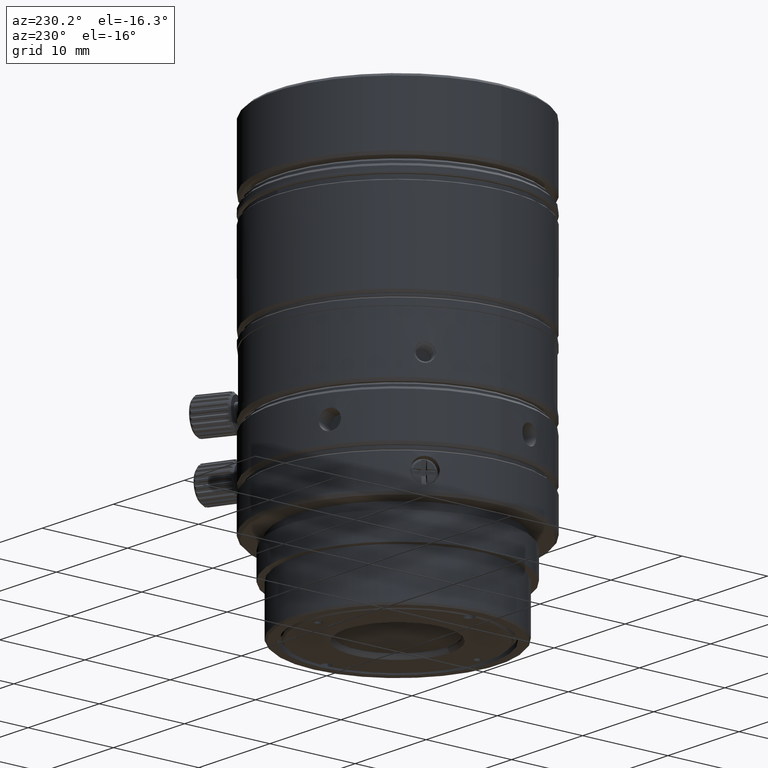
[diagram: clean part render]
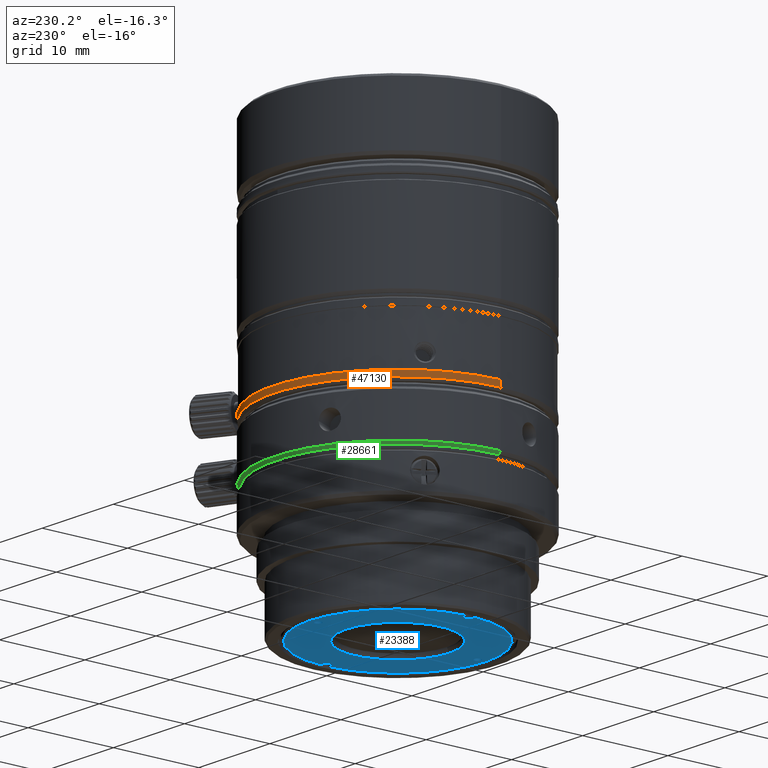
[diagram: same view with three faces highlighted in distinct colors, each labeled with its STEP entity id]
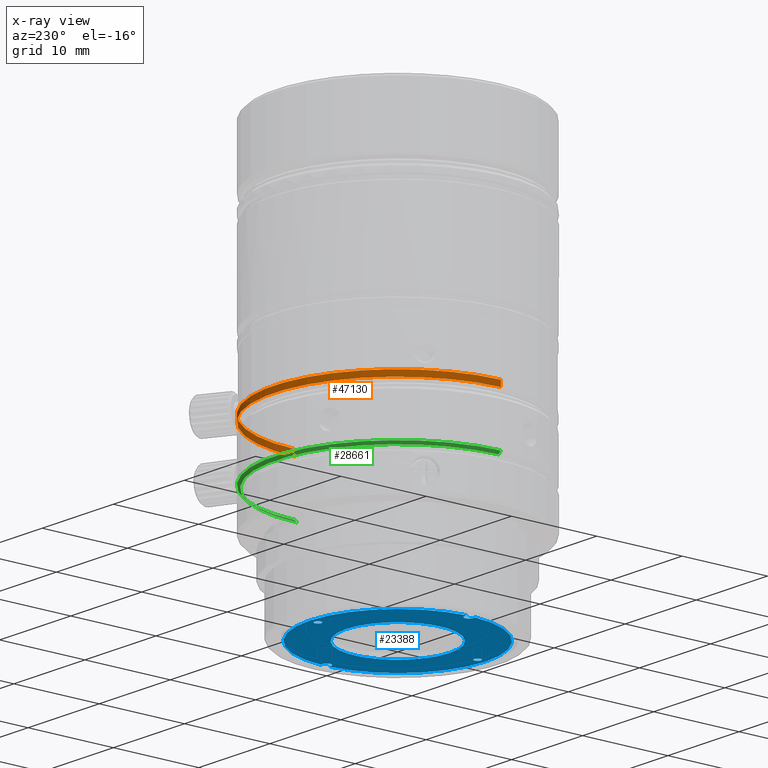
[diagram: x-ray of the same camera — body ghosted, the three highlighted faces saturated]
A machine part, auxiliary view with three faces highlighted in distinct colors.
The next image is the same camera in x-ray (body ghosted, the three faces saturated) — at least one of them is partly hidden behind the body in this view.
Their STEP definitions:

[orange] entity #47130 — the highlighted cylindrical surface (partial cylindrical patch) has radius 14.5 mm, axis along (-0, -0, 1).
#1053 = ORIENTED_EDGE ( 'NONE', *, *, #59316, .F. ) ;
#3615 = DIRECTION ( 'NONE',  ( -1.196360418184200069E-15, -5.835031729380630569E-32, 1.000000000000000000 ) ) ;
#5673 = CIRCLE ( 'NONE', #11701, 14.50000726879379975 ) ;
#5700 = AXIS2_PLACEMENT_3D ( 'NONE', #35645, #16203, #54753 ) ;
#6171 = LINE ( 'NONE', #44093, #23701 ) ;
#7826 = CARTESIAN_POINT ( 'NONE',  ( 14.50000726825533093, 5.829675970167840683E-14, 14.53138904638211670 ) ) ;
#9897 = EDGE_CURVE ( 'NONE', #15022, #40818, #37445, .T. ) ;
#10416 = DIRECTION ( 'NONE',  ( -1.000000000000000000, -2.342910729165050596E-15, -1.196360418184198688E-15 ) ) ;
#11701 = AXIS2_PLACEMENT_3D ( 'NONE', #19519, #57744, #10416 ) ;
#12052 = ORIENTED_EDGE ( 'NONE', *, *, #9897, .T. ) ;
#14073 = CARTESIAN_POINT ( 'NONE',  ( -14.50000726879380686, -7.871946754248213430E-15, 15.23138900958668174 ) ) ;
#15022 = VERTEX_POINT ( 'NONE', #30902 ) ;
#16203 = DIRECTION ( 'NONE',  ( -1.196360418184200069E-15, -5.835031729380630569E-32, 1.000000000000000000 ) ) ;
#17991 = EDGE_LOOP ( 'NONE', ( #1053, #35105, #12052, #61011 ) ) ;
#18946 = CARTESIAN_POINT ( 'NONE',  ( -14.50000726879381396, -7.871946754248213430E-15, 21.22048896989177891 ) ) ;
#19519 = CARTESIAN_POINT ( 'NONE',  ( -7.194891437681579004E-15, 2.610027584877999795E-14, 15.23138900958669950 ) ) ;
#19535 = AXIS2_PLACEMENT_3D ( 'NONE', #47325, #23839, #23204 ) ;
#22161 = VERTEX_POINT ( 'NONE', #30579 ) ;
#23204 = DIRECTION ( 'NONE',  ( -1.000000000000000000, -2.342910729165050596E-15, -1.196360418184198688E-15 ) ) ;
#23701 = VECTOR ( 'NONE', #49396, 1000.000000000000000 ) ;
#23839 = DIRECTION ( 'NONE',  ( -1.196360418184200069E-15, -5.835031729380630569E-32, 1.000000000000000000 ) ) ;
#30579 = CARTESIAN_POINT ( 'NONE',  ( 14.50000726879379265, 5.829675970287404228E-14, 15.23138900958671726 ) ) ;
#30902 = CARTESIAN_POINT ( 'NONE',  ( -14.50000726825533448, -7.871946752986627627E-15, 14.53138904638208295 ) ) ;
#35105 = ORIENTED_EDGE ( 'NONE', *, *, #37929, .T. ) ;
#35645 = CARTESIAN_POINT ( 'NONE',  ( -6.374872725578030424E-15, 2.610027584877999795E-14, 14.53138904638210072 ) ) ;
#37445 = LINE ( 'NONE', #18946, #38036 ) ;
#37929 = EDGE_CURVE ( 'NONE', #39574, #15022, #46700, .T. ) ;
#38036 = VECTOR ( 'NONE', #3615, 1000.000000000000000 ) ;
#39574 = VERTEX_POINT ( 'NONE', #7826 ) ;
#40818 = VERTEX_POINT ( 'NONE', #14073 ) ;
#44093 = CARTESIAN_POINT ( 'NONE',  ( 14.50000726879378554, 5.829675970287404228E-14, 21.22048896989181443 ) ) ;
#46700 = CIRCLE ( 'NONE', #5700, 14.50000726879379975 ) ;
#47130 = ADVANCED_FACE ( 'NONE', ( #61130 ), #61765, .T. ) ;
#47325 = CARTESIAN_POINT ( 'NONE',  ( -1.421085471520200056E-14, 2.610027584877999795E-14, 21.22048896989179667 ) ) ;
#49396 = DIRECTION ( 'NONE',  ( -1.196360418184200069E-15, -5.835031729380630569E-32, 1.000000000000000000 ) ) ;
#54753 = DIRECTION ( 'NONE',  ( -1.000000000000000000, -2.342910729165050596E-15, -1.196360418184198688E-15 ) ) ;
#57744 = DIRECTION ( 'NONE',  ( -1.196360418184200069E-15, -5.835031729380630569E-32, 1.000000000000000000 ) ) ;
#58552 = EDGE_CURVE ( 'NONE', #22161, #40818, #5673, .T. ) ;
#59316 = EDGE_CURVE ( 'NONE', #39574, #22161, #6171, .T. ) ;
#61011 = ORIENTED_EDGE ( 'NONE', *, *, #58552, .F. ) ;
#61130 = FACE_OUTER_BOUND ( 'NONE', #17991, .T. ) ;
#61765 = CYLINDRICAL_SURFACE ( 'NONE', #19535, 14.50000726879379975 ) ;

[blue] entity #23388 — the highlighted planar face has unit normal (-0, 0, -1).
#195 = DIRECTION ( 'NONE',  ( 8.509366289908875889E-08, -2.821362897186078587E-08, 0.9999999999999960032 ) ) ;
#751 = CIRCLE ( 'NONE', #8735, 0.4000000000000015210 ) ;
#877 = VERTEX_POINT ( 'NONE', #55882 ) ;
#1093 = CARTESIAN_POINT ( 'NONE',  ( -0.4000007617300434526, -9.349999249093700726, -6.033258326204964384 ) ) ;
#1538 = ORIENTED_EDGE ( 'NONE', *, *, #38857, .F. ) ;
#1609 = CARTESIAN_POINT ( 'NONE',  ( -7.617300433834000166E-07, -0.4999992490936980283, -6.033258110551820153 ) ) ;
#2184 = CARTESIAN_POINT ( 'NONE',  ( -7.617300441247110759E-07, 6.053261366486558437, -6.033257925660550747 ) ) ;
#2379 = CIRCLE ( 'NONE', #12387, 6.053260615752001250 ) ;
#2864 = EDGE_CURVE ( 'NONE', #61503, #37222, #10386, .T. ) ;
#3087 = LINE ( 'NONE', #22179, #60676 ) ;
#3438 = AXIS2_PLACEMENT_3D ( 'NONE', #6489, #40947, #12109 ) ;
#4911 = DIRECTION ( 'NONE',  ( -8.509366388603745388E-08, 2.821362899005938800E-08, -0.9999999999999960032 ) ) ;
#6274 = ORIENTED_EDGE ( 'NONE', *, *, #41174, .F. ) ;
#6343 = CIRCLE ( 'NONE', #57392, 0.5000000000000002220 ) ;
#6489 = CARTESIAN_POINT ( 'NONE',  ( -7.617300433834000166E-07, -9.349999249093700726, -6.033258360242430562 ) ) ;
#6695 = CARTESIAN_POINT ( 'NONE',  ( 0.3999992382699548710, -9.349999263200512445, -6.033258394279895853 ) ) ;
#6725 = CARTESIAN_POINT ( 'NONE',  ( -10.00000076172999997, -0.4999992490936980283, -6.033257259615189660 ) ) ;
#7213 = DIRECTION ( 'NONE',  ( 0.9999999999999963363, 0.000000000000000000, -8.509366289908869272E-08 ) ) ;
#7342 = VERTEX_POINT ( 'NONE', #45359 ) ;
#7441 = CARTESIAN_POINT ( 'NONE',  ( -0.4000007617300434526, 9.350000750906300340, -6.033257798610104139 ) ) ;
#8336 = DIRECTION ( 'NONE',  ( -8.509366388603745388E-08, 2.821362899005938800E-08, -0.9999999999999960032 ) ) ;
#8735 = AXIS2_PLACEMENT_3D ( 'NONE', #15553, #4911, #19642 ) ;
#8964 = CIRCLE ( 'NONE', #59993, 0.5000000000000002220 ) ;
#8965 = VERTEX_POINT ( 'NONE', #1093 ) ;
#9022 = DIRECTION ( 'NONE',  ( 0.9999999999999963363, 0.000000000000000000, -8.509366289908869272E-08 ) ) ;
#9117 = CIRCLE ( 'NONE', #44141, 0.4000000000000015210 ) ;
#10386 = CIRCLE ( 'NONE', #17349, 10.30000000000000604 ) ;
#10617 = DIRECTION ( 'NONE',  ( 0.000000000000000000, -0.9999999999999995559, -2.821362934946057619E-08 ) ) ;
#10946 = CARTESIAN_POINT ( 'NONE',  ( -7.617300433834000166E-07, 7.509063014303999604E-07, -6.033258096445000440 ) ) ;
#11215 = ORIENTED_EDGE ( 'NONE', *, *, #15020, .F. ) ;
#11245 = CARTESIAN_POINT ( 'NONE',  ( 10.28785615795990083, 0.5000007509063010280, -6.033258957769609410 ) ) ;
#12109 = DIRECTION ( 'NONE',  ( -0.9999999999999962252, 0.000000000000000000, 8.509366388603746711E-08 ) ) ;
#12248 = EDGE_CURVE ( 'NONE', #49881, #8965, #9117, .T. ) ;
#12387 = AXIS2_PLACEMENT_3D ( 'NONE', #34192, #18001, #37123 ) ;
#12845 = VECTOR ( 'NONE', #17809, 1000.000000000000114 ) ;
#13144 = AXIS2_PLACEMENT_3D ( 'NONE', #30416, #25724, #17240 ) ;
#13409 = AXIS2_PLACEMENT_3D ( 'NONE', #44031, #195, #14287 ) ;
#13448 = DIRECTION ( 'NONE',  ( 0.000000000000000000, 0.9999999999999995559, 2.821362934946057619E-08 ) ) ;
#13755 = EDGE_LOOP ( 'NONE', ( #11215, #39271 ) ) ;
#13789 = CARTESIAN_POINT ( 'NONE',  ( 9.999999238269920099, 0.5000007509063010280, -6.033258933274820102 ) ) ;
#14287 = DIRECTION ( 'NONE',  ( 0.000000000000000000, 0.9999999999999996669, 2.821362897186101086E-08 ) ) ;
#15020 = EDGE_CURVE ( 'NONE', #8965, #49881, #49453, .T. ) ;
#15148 = ORIENTED_EDGE ( 'NONE', *, *, #34916, .F. ) ;
#15501 = EDGE_CURVE ( 'NONE', #55518, #41644, #40432, .T. ) ;
#15553 = CARTESIAN_POINT ( 'NONE',  ( -7.617300433834000166E-07, 9.350000750906300340, -6.033257832647570318 ) ) ;
#16245 = FACE_BOUND ( 'NONE', #53876, .T. ) ;
#16689 = AXIS2_PLACEMENT_3D ( 'NONE', #55617, #60015, #26478 ) ;
#16866 = EDGE_CURVE ( 'NONE', #37213, #36641, #34437, .T. ) ;
#17240 = DIRECTION ( 'NONE',  ( 0.9988210601640105102, -0.04854368932039067330, -8.636293625360105223E-08 ) ) ;
#17349 = AXIS2_PLACEMENT_3D ( 'NONE', #38696, #28649, #57795 ) ;
#17422 = AXIS2_PLACEMENT_3D ( 'NONE', #57635, #53547, #10617 ) ;
#17502 = CARTESIAN_POINT ( 'NONE',  ( 10.28785615795990083, -0.4999992490936980283, -6.033258985983239953 ) ) ;
#17793 = CIRCLE ( 'NONE', #13144, 10.30000000000000604 ) ;
#17809 = DIRECTION ( 'NONE',  ( -0.9999999999999963363, 0.000000000000000000, 8.509366289908869272E-08 ) ) ;
#18001 = DIRECTION ( 'NONE',  ( 8.509366289908875889E-08, -2.821362897186078587E-08, 0.9999999999999960032 ) ) ;
#19642 = DIRECTION ( 'NONE',  ( -0.9999999999999962252, 0.000000000000000000, 8.509366388603746711E-08 ) ) ;
#19755 = EDGE_CURVE ( 'NONE', #25960, #37128, #8964, .T. ) ;
#20348 = FACE_BOUND ( 'NONE', #32725, .T. ) ;
#20963 = FACE_OUTER_BOUND ( 'NONE', #42835, .T. ) ;
#21900 = LINE ( 'NONE', #17502, #12845 ) ;
#22179 = CARTESIAN_POINT ( 'NONE',  ( 9.999999238269920099, 0.5000007509063010280, -6.033258933274820102 ) ) ;
#22875 = CARTESIAN_POINT ( 'NONE',  ( -7.617300433834000166E-07, -9.349999249093700726, -6.033258360242430562 ) ) ;
#23328 = CARTESIAN_POINT ( 'NONE',  ( 0.3999992382699548710, 9.350000736799486845, -6.033257866685035609 ) ) ;
#23388 = ADVANCED_FACE ( 'NONE', ( #20963, #16245, #43562, #20348 ), #30348, .T. ) ;
#25610 = ORIENTED_EDGE ( 'NONE', *, *, #52158, .F. ) ;
#25724 = DIRECTION ( 'NONE',  ( -8.509366292226074806E-08, 2.821362899118558779E-08, -0.9999999999999960032 ) ) ;
#25960 = VERTEX_POINT ( 'NONE', #60267 ) ;
#26478 = DIRECTION ( 'NONE',  ( -0.9988210601640105102, 0.04854368932039067330, 8.636293625360105223E-08 ) ) ;
#26583 = LINE ( 'NONE', #11245, #43894 ) ;
#27001 = ORIENTED_EDGE ( 'NONE', *, *, #40972, .T. ) ;
#28294 = ORIENTED_EDGE ( 'NONE', *, *, #37061, .T. ) ;
#28649 = DIRECTION ( 'NONE',  ( -8.509366292226074806E-08, 2.821362899118558779E-08, -0.9999999999999960032 ) ) ;
#29124 = DIRECTION ( 'NONE',  ( -0.9999999999999963363, 0.000000000000000000, 8.509366289908879860E-08 ) ) ;
#29364 = CIRCLE ( 'NONE', #17422, 0.5000000000000002220 ) ;
#30347 = ORIENTED_EDGE ( 'NONE', *, *, #16866, .F. ) ;
#30348 = PLANE ( 'NONE',  #59928 ) ;
#30416 = CARTESIAN_POINT ( 'NONE',  ( -7.617300433834000166E-07, 7.509063014303999604E-07, -6.033258096445000440 ) ) ;
#30525 = CARTESIAN_POINT ( 'NONE',  ( -7.617300433833998049E-07, -6.053259864673956159, -6.033258267229449245 ) ) ;
#30968 = EDGE_CURVE ( 'NONE', #37222, #7342, #17793, .T. ) ;
#31538 = ORIENTED_EDGE ( 'NONE', *, *, #58095, .F. ) ;
#31670 = CIRCLE ( 'NONE', #16689, 10.30000000000000604 ) ;
#31822 = VECTOR ( 'NONE', #7213, 1000.000000000000114 ) ;
#31964 = DIRECTION ( 'NONE',  ( -8.509366388603745388E-08, 2.821362899005938800E-08, -0.9999999999999960032 ) ) ;
#32149 = DIRECTION ( 'NONE',  ( -0.9999999999999962252, 0.000000000000000000, 8.509366388603746711E-08 ) ) ;
#32245 = DIRECTION ( 'NONE',  ( -8.509366289908875889E-08, 2.821362934946038759E-08, -0.9999999999999960032 ) ) ;
#32725 = EDGE_LOOP ( 'NONE', ( #41815, #38389 ) ) ;
#33330 = VERTEX_POINT ( 'NONE', #6725 ) ;
#34192 = CARTESIAN_POINT ( 'NONE',  ( -7.617300433834000166E-07, 7.509063014303999604E-07, -6.033258096445000440 ) ) ;
#34437 = CIRCLE ( 'NONE', #39456, 0.4000000000000015210 ) ;
#34916 = EDGE_CURVE ( 'NONE', #60769, #33330, #6343, .T. ) ;
#36012 = EDGE_CURVE ( 'NONE', #41644, #55518, #2379, .T. ) ;
#36641 = VERTEX_POINT ( 'NONE', #7441 ) ;
#37061 = EDGE_CURVE ( 'NONE', #877, #48141, #31670, .T. ) ;
#37123 = DIRECTION ( 'NONE',  ( 0.000000000000000000, 0.9999999999999996669, 2.821362897186101086E-08 ) ) ;
#37128 = VERTEX_POINT ( 'NONE', #51222 ) ;
#37213 = VERTEX_POINT ( 'NONE', #23328 ) ;
#37222 = VERTEX_POINT ( 'NONE', #61882 ) ;
#38389 = ORIENTED_EDGE ( 'NONE', *, *, #36012, .T. ) ;
#38696 = CARTESIAN_POINT ( 'NONE',  ( -7.617300433834000166E-07, 7.509063014303999604E-07, -6.033258096445000440 ) ) ;
#38857 = EDGE_CURVE ( 'NONE', #36641, #37213, #751, .T. ) ;
#39271 = ORIENTED_EDGE ( 'NONE', *, *, #12248, .F. ) ;
#39456 = AXIS2_PLACEMENT_3D ( 'NONE', #61297, #8336, #32149 ) ;
#39542 = ORIENTED_EDGE ( 'NONE', *, *, #30968, .T. ) ;
#40432 = CIRCLE ( 'NONE', #13409, 6.053260615752001250 ) ;
#40947 = DIRECTION ( 'NONE',  ( -8.509366388603745388E-08, 2.821362899005938800E-08, -0.9999999999999960032 ) ) ;
#40972 = EDGE_CURVE ( 'NONE', #48141, #52613, #26583, .T. ) ;
#41174 = EDGE_CURVE ( 'NONE', #61503, #25960, #21900, .T. ) ;
#41644 = VERTEX_POINT ( 'NONE', #2184 ) ;
#41815 = ORIENTED_EDGE ( 'NONE', *, *, #15501, .T. ) ;
#42186 = CARTESIAN_POINT ( 'NONE',  ( -10.00000076172999997, 0.5000007509063010280, -6.033257231401560006 ) ) ;
#42309 = DIRECTION ( 'NONE',  ( -0.9999999999999962252, 0.000000000000000000, 8.509366388603746711E-08 ) ) ;
#42315 = CARTESIAN_POINT ( 'NONE',  ( 9.999999238269920099, 7.509063014303999604E-07, -6.033258947381630044 ) ) ;
#42835 = EDGE_LOOP ( 'NONE', ( #54848, #6274, #59270, #39542, #61487, #15148, #31538, #28294, #27001, #25610 ) ) ;
#43562 = FACE_BOUND ( 'NONE', #13755, .T. ) ;
#43894 = VECTOR ( 'NONE', #45085, 1000.000000000000114 ) ;
#43910 = CARTESIAN_POINT ( 'NONE',  ( 10.28785615795990083, -0.4999992490936980283, -6.033258985983239953 ) ) ;
#44031 = CARTESIAN_POINT ( 'NONE',  ( -7.617300433834000166E-07, 7.509063014303999604E-07, -6.033258096445000440 ) ) ;
#44141 = AXIS2_PLACEMENT_3D ( 'NONE', #22875, #31964, #42309 ) ;
#45085 = DIRECTION ( 'NONE',  ( -0.9999999999999963363, 0.000000000000000000, 8.509366289908869272E-08 ) ) ;
#45359 = CARTESIAN_POINT ( 'NONE',  ( -10.28785768142000023, -0.4999992490936980283, -6.033257235120390582 ) ) ;
#46996 = DIRECTION ( 'NONE',  ( 0.000000000000000000, -0.9999999999999995559, -2.821362934946057619E-08 ) ) ;
#48141 = VERTEX_POINT ( 'NONE', #56709 ) ;
#49453 = CIRCLE ( 'NONE', #3438, 0.4000000000000015210 ) ;
#49837 = LINE ( 'NONE', #1609, #31822 ) ;
#49881 = VERTEX_POINT ( 'NONE', #6695 ) ;
#51222 = CARTESIAN_POINT ( 'NONE',  ( 9.499999238269923652, 7.297460770190845423E-07, -6.033258904834799985 ) ) ;
#52158 = EDGE_CURVE ( 'NONE', #37128, #52613, #29364, .T. ) ;
#52613 = VERTEX_POINT ( 'NONE', #13789 ) ;
#53547 = DIRECTION ( 'NONE',  ( -8.509366289908875889E-08, 2.821362934946038759E-08, -0.9999999999999960032 ) ) ;
#53876 = EDGE_LOOP ( 'NONE', ( #1538, #30347 ) ) ;
#54848 = ORIENTED_EDGE ( 'NONE', *, *, #19755, .F. ) ;
#55518 = VERTEX_POINT ( 'NONE', #30525 ) ;
#55617 = CARTESIAN_POINT ( 'NONE',  ( -7.617300433834000166E-07, 7.509063014303999604E-07, -6.033258096445000440 ) ) ;
#55882 = CARTESIAN_POINT ( 'NONE',  ( -10.28785768142000023, 0.5000007509063010280, -6.033257206906760040 ) ) ;
#56375 = CARTESIAN_POINT ( 'NONE',  ( -10.00000076172999997, 7.509063014303999604E-07, -6.033257245508369948 ) ) ;
#56709 = CARTESIAN_POINT ( 'NONE',  ( 10.28785615795990083, 0.5000007509063010280, -6.033258957769609410 ) ) ;
#57392 = AXIS2_PLACEMENT_3D ( 'NONE', #56375, #32245, #13448 ) ;
#57635 = CARTESIAN_POINT ( 'NONE',  ( 9.999999238269920099, 7.509063014303999604E-07, -6.033258947381630044 ) ) ;
#57795 = DIRECTION ( 'NONE',  ( 0.9988210601640105102, -0.04854368932039067330, -8.636293625360105223E-08 ) ) ;
#58095 = EDGE_CURVE ( 'NONE', #877, #60769, #3087, .T. ) ;
#59183 = DIRECTION ( 'NONE',  ( -8.509366289908877213E-08, 2.821362899005938800E-08, -0.9999999999999960032 ) ) ;
#59270 = ORIENTED_EDGE ( 'NONE', *, *, #2864, .T. ) ;
#59928 = AXIS2_PLACEMENT_3D ( 'NONE', #10946, #59183, #29124 ) ;
#59993 = AXIS2_PLACEMENT_3D ( 'NONE', #42315, #61749, #46996 ) ;
#60015 = DIRECTION ( 'NONE',  ( -8.509366292226074806E-08, 2.821362899118558779E-08, -0.9999999999999960032 ) ) ;
#60267 = CARTESIAN_POINT ( 'NONE',  ( 9.999999238269920099, -0.4999992490936980283, -6.033258961488439986 ) ) ;
#60676 = VECTOR ( 'NONE', #9022, 1000.000000000000114 ) ;
#60769 = VERTEX_POINT ( 'NONE', #42186 ) ;
#61297 = CARTESIAN_POINT ( 'NONE',  ( -7.617300433834000166E-07, 9.350000750906300340, -6.033257832647570318 ) ) ;
#61487 = ORIENTED_EDGE ( 'NONE', *, *, #61739, .T. ) ;
#61503 = VERTEX_POINT ( 'NONE', #43910 ) ;
#61739 = EDGE_CURVE ( 'NONE', #7342, #33330, #49837, .T. ) ;
#61749 = DIRECTION ( 'NONE',  ( -8.509366289908875889E-08, 2.821362934946038759E-08, -0.9999999999999960032 ) ) ;
#61882 = CARTESIAN_POINT ( 'NONE',  ( -7.532207261043234934E-07, -10.29999924909369646, -6.033258387045379756 ) ) ;

[green] entity #28661 — the highlighted conical surface has half-angle 45 deg.
#366 = VECTOR ( 'NONE', #47043, 1000.000000000000114 ) ;
#1277 = VERTEX_POINT ( 'NONE', #21053 ) ;
#1808 = ORIENTED_EDGE ( 'NONE', *, *, #22978, .F. ) ;
#2279 = EDGE_LOOP ( 'NONE', ( #3219, #4584, #1808, #18634 ) ) ;
#3214 = CARTESIAN_POINT ( 'NONE',  ( 14.35000016947998347, -6.369393111752618612E-11, 8.431390536699000293 ) ) ;
#3219 = ORIENTED_EDGE ( 'NONE', *, *, #47695, .T. ) ;
#3378 = EDGE_CURVE ( 'NONE', #11983, #23382, #51145, .T. ) ;
#4584 = ORIENTED_EDGE ( 'NONE', *, *, #51499, .T. ) ;
#5259 = DIRECTION ( 'NONE',  ( -5.643601784164229741E-17, 2.505996366630585200E-28, 1.000000000000000000 ) ) ;
#5938 = CARTESIAN_POINT ( 'NONE',  ( 14.50000016947998382, -6.435999415558346536E-11, 8.581390536700000737 ) ) ;
#6623 = DIRECTION ( 'NONE',  ( 1.000000000000000000, -4.440420253715160470E-12, 0.000000000000000000 ) ) ;
#11983 = VERTEX_POINT ( 'NONE', #39546 ) ;
#18634 = ORIENTED_EDGE ( 'NONE', *, *, #3378, .F. ) ;
#20117 = DIRECTION ( 'NONE',  ( 0.000000000000000000, 0.000000000000000000, 1.000000000000000000 ) ) ;
#20884 = AXIS2_PLACEMENT_3D ( 'NONE', #58335, #20117, #6623 ) ;
#21053 = CARTESIAN_POINT ( 'NONE',  ( -14.50000016948001580, 6.441397044516053770E-11, 8.581390536700000737 ) ) ;
#22978 = EDGE_CURVE ( 'NONE', #23382, #1277, #47942, .T. ) ;
#23382 = VERTEX_POINT ( 'NONE', #5938 ) ;
#28143 = FACE_OUTER_BOUND ( 'NONE', #2279, .T. ) ;
#28661 = ADVANCED_FACE ( 'NONE', ( #28143 ), #37569, .T. ) ;
#31479 = DIRECTION ( 'NONE',  ( 0.000000000000000000, 0.000000000000000000, 1.000000000000000000 ) ) ;
#35583 = CIRCLE ( 'NONE', #42580, 14.20000016948000088 ) ;
#37045 = CARTESIAN_POINT ( 'NONE',  ( -14.35000016948001544, 6.374788903740127102E-11, 8.431390536699000293 ) ) ;
#37569 = CONICAL_SURFACE ( 'NONE', #59558, 14.35000016947999946, 0.7853981625000003852 ) ;
#37889 = CARTESIAN_POINT ( 'NONE',  ( -1.504920724136999930E-14, 2.610027584877999795E-14, 8.431390536699000293 ) ) ;
#38095 = CARTESIAN_POINT ( 'NONE',  ( -14.20000016948001509, 6.374788903679943250E-11, 8.281390536697800897 ) ) ;
#39546 = CARTESIAN_POINT ( 'NONE',  ( 14.20000016947998489, -6.369393111692437345E-11, 8.281390536697800897 ) ) ;
#40602 = CARTESIAN_POINT ( 'NONE',  ( -1.504920724136999930E-14, 2.610027584877999795E-14, 8.281390536697800897 ) ) ;
#42580 = AXIS2_PLACEMENT_3D ( 'NONE', #40602, #31479, #60306 ) ;
#45092 = VECTOR ( 'NONE', #56150, 1000.000000000000114 ) ;
#47043 = DIRECTION ( 'NONE',  ( -0.7071067805519559712, 3.139937865507772117E-12, 0.7071067818211389522 ) ) ;
#47695 = EDGE_CURVE ( 'NONE', #11983, #53761, #35583, .T. ) ;
#47942 = CIRCLE ( 'NONE', #20884, 14.50000016947999981 ) ;
#51145 = LINE ( 'NONE', #3214, #45092 ) ;
#51444 = LINE ( 'NONE', #37045, #366 ) ;
#51499 = EDGE_CURVE ( 'NONE', #53761, #1277, #51444, .T. ) ;
#53761 = VERTEX_POINT ( 'NONE', #38095 ) ;
#56150 = DIRECTION ( 'NONE',  ( 0.7071067805519559712, -3.139851269902226162E-12, 0.7071067818211389522 ) ) ;
#57611 = DIRECTION ( 'NONE',  ( 1.000000000000000000, -4.440420253715159662E-12, 0.000000000000000000 ) ) ;
#58335 = CARTESIAN_POINT ( 'NONE',  ( -1.504920724136999930E-14, 2.610027584877999795E-14, 8.581390536700000737 ) ) ;
#59558 = AXIS2_PLACEMENT_3D ( 'NONE', #37889, #5259, #57611 ) ;
#60306 = DIRECTION ( 'NONE',  ( -1.000000000000000000, 4.440420253715158855E-12, 0.000000000000000000 ) ) ;